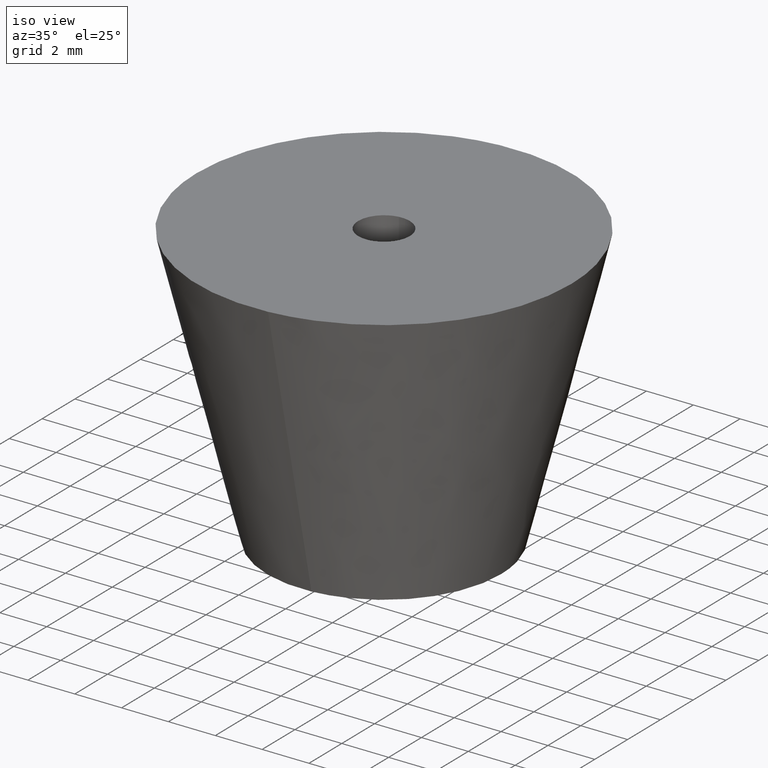
[diagram: clean part render]
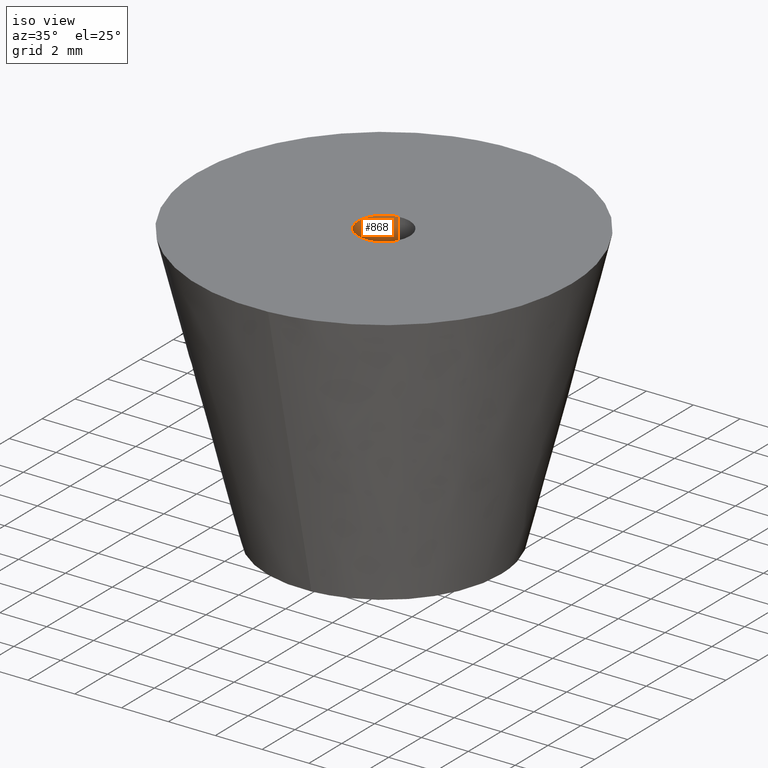
[diagram: same view with one face highlighted and labeled with its STEP entity id]
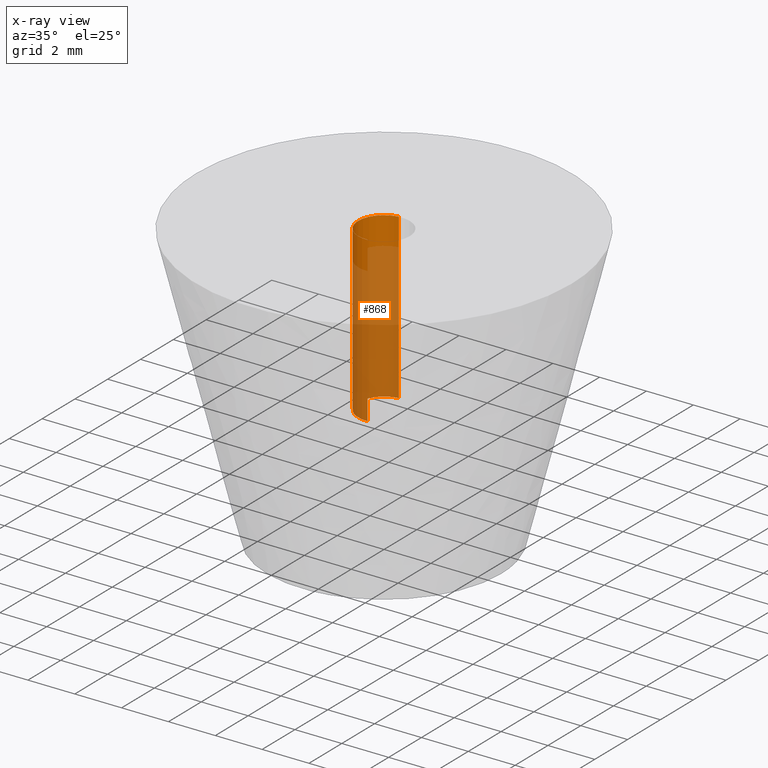
[diagram: x-ray of the same camera — body ghosted, the highlighted face saturated]
A machine part, iso view. The second image highlights one B-rep face of the part: STEP entity #868.
The next image is the same camera in x-ray: the body ghosted, the highlighted face saturated — about 81% of this face is hidden behind the body in this view.
In plain terms, the highlighted face is a freeform B-spline surface patch.
Its self-contained STEP definition (entity closure, byte-faithful):
#701=CARTESIAN_POINT('',(-0.129835685511386,1.092310713471145,12.000000000000011));
#702=VERTEX_POINT('',#701);
#720=CARTESIAN_POINT('',(-0.129835709327981,1.092310710640268,5.0));
#721=VERTEX_POINT('',#720);
#722=CARTESIAN_POINT('',(-0.129835685511386,1.092310713471145,12.000000000000011));
#723=CARTESIAN_POINT('',(-0.129835709327981,1.092310710640268,5.0));
#724=QUASI_UNIFORM_CURVE('',1,(#722,#723),.UNSPECIFIED.,.F.,.U.);
#725=EDGE_CURVE('',#702,#721,#724,.T.);
#744=CARTESIAN_POINT('',(0.067153393495066,-1.097948278263643,5.0));
#745=VERTEX_POINT('',#744);
#759=CARTESIAN_POINT('',(0.067153393495066,-1.097948278263642,12.0));
#760=VERTEX_POINT('',#759);
#761=CARTESIAN_POINT('',(0.067153393495066,-1.097948278263642,12.0));
#762=CARTESIAN_POINT('',(0.067153393495066,-1.097948278263643,5.0));
#763=QUASI_UNIFORM_CURVE('',1,(#761,#762),.UNSPECIFIED.,.F.,.U.);
#764=EDGE_CURVE('',#760,#745,#763,.T.);
#782=CARTESIAN_POINT('',(0.082283333031204,-1.097022891518893,12.175000000000001));
#783=CARTESIAN_POINT('',(0.074740015261983,-1.097484260598287,12.175000000000008));
#784=CARTESIAN_POINT('',(-1.030794884775711,-1.165101671752396,12.175000000000001));
#785=CARTESIAN_POINT('',(-1.097948278264053,-0.067153393488343,12.175000000000001));
#786=CARTESIAN_POINT('',(-1.161364816405780,0.969697839923451,12.175000000000002));
#787=CARTESIAN_POINT('',(-0.122114025585663,1.093228549805039,12.175000000000008));
#788=CARTESIAN_POINT('',(-0.114431904755311,1.094141686314487,12.175000000000004));
#789=CARTESIAN_POINT('',(0.082283333031204,-1.097022891518893,4.820625000000000));
#790=CARTESIAN_POINT('',(0.074740015261983,-1.097484260598287,4.820625000000002));
#791=CARTESIAN_POINT('',(-1.030794884775711,-1.165101671752396,4.820624999999999));
#792=CARTESIAN_POINT('',(-1.097948278264053,-0.067153393488343,4.820624999999999));
#793=CARTESIAN_POINT('',(-1.161364816405780,0.969697839923451,4.820624999999999));
#794=CARTESIAN_POINT('',(-0.122114025585663,1.093228549805039,4.820624999999999));
#795=CARTESIAN_POINT('',(-0.114431904755311,1.094141686314487,4.820625000000000));
#803=(BOUNDED_SURFACE()B_SPLINE_SURFACE(2,1,((#782,#789),(#783,#790),(#784,#791),(#785,#792),(#786,#793),(#787,#794),(#788,#795)),.UNSPECIFIED.,.F.,.F.,.U.)B_SPLINE_SURFACE_WITH_KNOTS((3,1,2,1,3),(2,2),(0.0,0.017860899793111,1.840400574234729,3.590038661698682,3.607901836458825),(0.0,7.354375000000004),.UNSPECIFIED.)GEOMETRIC_REPRESENTATION_ITEM()RATIONAL_B_SPLINE_SURFACE(((1.005740710619001,1.005740710619001),(1.002870355309500,1.002870355309500),(0.707106781186548,0.707106781186548),(1.0,1.0),(0.718822509939086,0.718822509939086),(0.980146864032832,0.980146864032832),(0.982787927270538,0.982787927270538)))REPRESENTATION_ITEM('')SURFACE());
#804=CARTESIAN_POINT('',(-1.100000000000000,0.0,12.0));
#805=VERTEX_POINT('',#804);
#806=CARTESIAN_POINT('',(-1.100000000000000,0.0,12.0));
#807=CARTESIAN_POINT('',(-1.100000000000000,0.976993755324632,12.0));
#808=CARTESIAN_POINT('',(-0.129835685511386,1.092310713471145,12.000000000000012));
#816=(BOUNDED_CURVE()B_SPLINE_CURVE(2,(#806,#807,#808),.UNSPECIFIED.,.F.,.U.)B_SPLINE_CURVE_WITH_KNOTS((3,3),(0.0,0.229562778719813),.UNSPECIFIED.)CURVE()GEOMETRIC_REPRESENTATION_ITEM()RATIONAL_B_SPLINE_CURVE((1.0,0.731050475283975,0.956027352401419))REPRESENTATION_ITEM(''));
#817=EDGE_CURVE('',#805,#702,#816,.T.);
#818=ORIENTED_EDGE('',*,*,#817,.F.);
#819=CARTESIAN_POINT('',(0.067153393495066,-1.097948278263642,11.999999999999996));
#820=CARTESIAN_POINT('',(0.033608039635190,-1.100000000000000,11.999999999999996));
#821=CARTESIAN_POINT('',(0.0,-1.100000000000000,12.0));
#822=CARTESIAN_POINT('',(-1.100000000000000,-1.100000000000000,12.0));
#823=CARTESIAN_POINT('',(-1.100000000000000,0.0,12.0));
#831=(BOUNDED_CURVE()B_SPLINE_CURVE(2,(#819,#820,#821,#822,#823),.UNSPECIFIED.,.F.,.U.)B_SPLINE_CURVE_WITH_KNOTS((3,2,3),(0.739332962239855,0.750000000000000,1.0),.UNSPECIFIED.)CURVE()GEOMETRIC_REPRESENTATION_ITEM()RATIONAL_B_SPLINE_CURVE((0.976072041668673,0.987502787900906,1.0,0.707106781186548,1.0))REPRESENTATION_ITEM(''));
#832=EDGE_CURVE('',#760,#805,#831,.T.);
#833=ORIENTED_EDGE('',*,*,#832,.F.);
#834=ORIENTED_EDGE('',*,*,#764,.T.);
#835=CARTESIAN_POINT('',(-1.100000000000000,0.0,5.0));
#836=VERTEX_POINT('',#835);
#837=CARTESIAN_POINT('',(0.067153393495066,-1.097948278263643,5.0));
#838=CARTESIAN_POINT('',(0.033608039635190,-1.100000000000000,5.0));
#839=CARTESIAN_POINT('',(0.0,-1.100000000000000,5.0));
#840=CARTESIAN_POINT('',(-1.100000000000000,-1.100000000000000,5.000000000000001));
#841=CARTESIAN_POINT('',(-1.100000000000000,0.0,5.0));
#849=(BOUNDED_CURVE()B_SPLINE_CURVE(2,(#837,#838,#839,#840,#841),.UNSPECIFIED.,.F.,.U.)B_SPLINE_CURVE_WITH_KNOTS((3,2,3),(0.739332962239855,0.750000000000000,1.0),.UNSPECIFIED.)CURVE()GEOMETRIC_REPRESENTATION_ITEM()RATIONAL_B_SPLINE_CURVE((0.976072041668673,0.987502787900906,1.0,0.707106781186548,1.0))REPRESENTATION_ITEM(''));
#850=EDGE_CURVE('',#745,#836,#849,.T.);
#851=ORIENTED_EDGE('',*,*,#850,.T.);
#852=CARTESIAN_POINT('',(-1.100000000000000,0.0,5.0));
#853=CARTESIAN_POINT('',(-1.100000000000000,0.976993733872441,4.999999999999999));
#854=CARTESIAN_POINT('',(-0.129835709327981,1.092310710640269,5.0));
#862=(BOUNDED_CURVE()B_SPLINE_CURVE(2,(#852,#853,#854),.UNSPECIFIED.,.F.,.U.)B_SPLINE_CURVE_WITH_KNOTS((3,3),(0.0,0.229562775034887),.UNSPECIFIED.)CURVE()GEOMETRIC_REPRESENTATION_ITEM()RATIONAL_B_SPLINE_CURVE((1.0,0.731050479601134,0.956027345178793))REPRESENTATION_ITEM(''));
#863=EDGE_CURVE('',#836,#721,#862,.T.);
#864=ORIENTED_EDGE('',*,*,#863,.T.);
#865=ORIENTED_EDGE('',*,*,#725,.F.);
#866=EDGE_LOOP('',(#818,#833,#834,#851,#864,#865));
#867=FACE_OUTER_BOUND('',#866,.T.);
#868=ADVANCED_FACE('',(#867),#803,.F.);